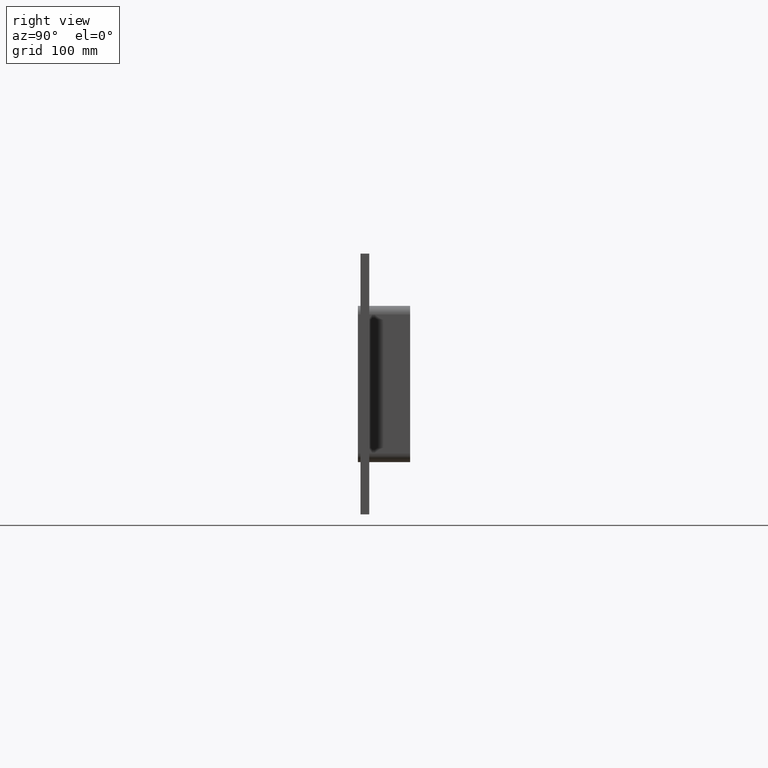
[diagram: clean part render]
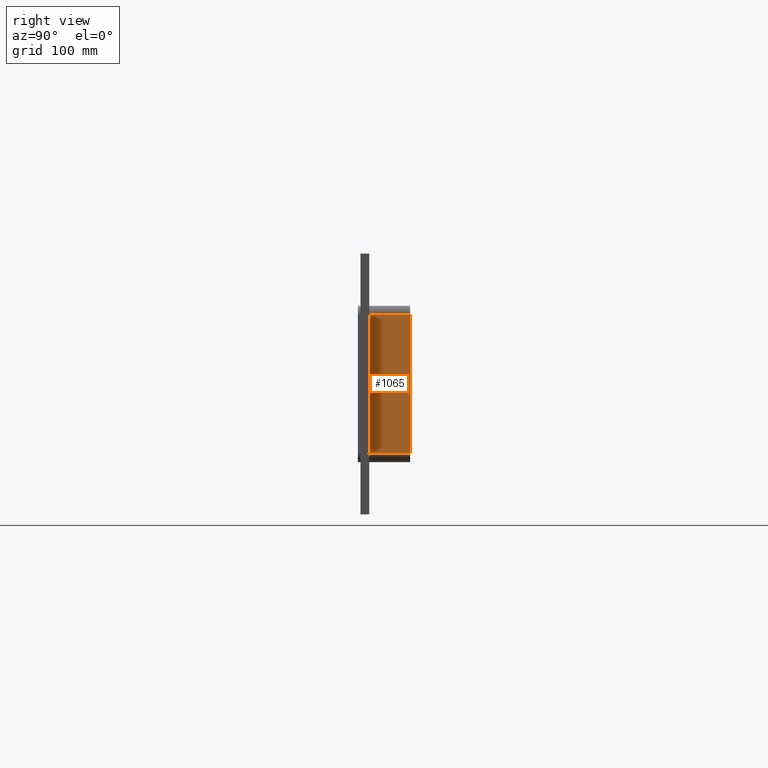
[diagram: same view with one face highlighted and labeled with its STEP entity id]
A machine part, right view. The second image highlights one B-rep face of the part: STEP entity #1065.
In plain terms, the highlighted planar face has unit normal (1, 0, 0).
Its self-contained STEP definition (entity closure, byte-faithful):
#702=CARTESIAN_POINT('',(331.25000000000006,10.0,-79.750000000000014));
#703=VERTEX_POINT('',#702);
#711=CARTESIAN_POINT('',(331.25000000000006,10.0,79.750000000000014));
#712=VERTEX_POINT('',#711);
#713=CARTESIAN_POINT('',(331.25000000000006,10.0,79.750000000000014));
#714=DIRECTION('',(0.0,0.0,-1.0));
#715=VECTOR('',#714,159.50000000000006);
#716=LINE('',#713,#715);
#717=EDGE_CURVE('',#712,#703,#716,.T.);
#992=CARTESIAN_POINT('',(331.25000000000006,57.0,79.750000000000014));
#993=VERTEX_POINT('',#992);
#994=CARTESIAN_POINT('',(331.25000000000006,10.0,79.750000000000014));
#995=DIRECTION('',(0.0,1.0,0.0));
#996=VECTOR('',#995,47.0);
#997=LINE('',#994,#996);
#998=EDGE_CURVE('',#712,#993,#997,.T.);
#1042=CARTESIAN_POINT('',(331.25000000000006,0.0,89.750000000000014));
#1043=DIRECTION('',(1.0,0.0,0.0));
#1044=DIRECTION('',(0.0,0.0,-1.0));
#1045=AXIS2_PLACEMENT_3D('',#1042,#1043,#1044);
#1046=PLANE('',#1045);
#1047=ORIENTED_EDGE('',*,*,#717,.T.);
#1048=CARTESIAN_POINT('',(331.25000000000006,57.0,-79.750000000000014));
#1049=VERTEX_POINT('',#1048);
#1050=CARTESIAN_POINT('',(331.25000000000006,57.0,-79.750000000000014));
#1051=DIRECTION('',(0.0,-1.0,0.0));
#1052=VECTOR('',#1051,47.0);
#1053=LINE('',#1050,#1052);
#1054=EDGE_CURVE('',#1049,#703,#1053,.T.);
#1055=ORIENTED_EDGE('',*,*,#1054,.F.);
#1056=CARTESIAN_POINT('',(331.25000000000006,57.0,79.750000000000014));
#1057=DIRECTION('',(0.0,0.0,-1.0));
#1058=VECTOR('',#1057,159.50000000000003);
#1059=LINE('',#1056,#1058);
#1060=EDGE_CURVE('',#993,#1049,#1059,.T.);
#1061=ORIENTED_EDGE('',*,*,#1060,.F.);
#1062=ORIENTED_EDGE('',*,*,#998,.F.);
#1063=EDGE_LOOP('',(#1047,#1055,#1061,#1062));
#1064=FACE_OUTER_BOUND('',#1063,.T.);
#1065=ADVANCED_FACE('',(#1064),#1046,.T.);